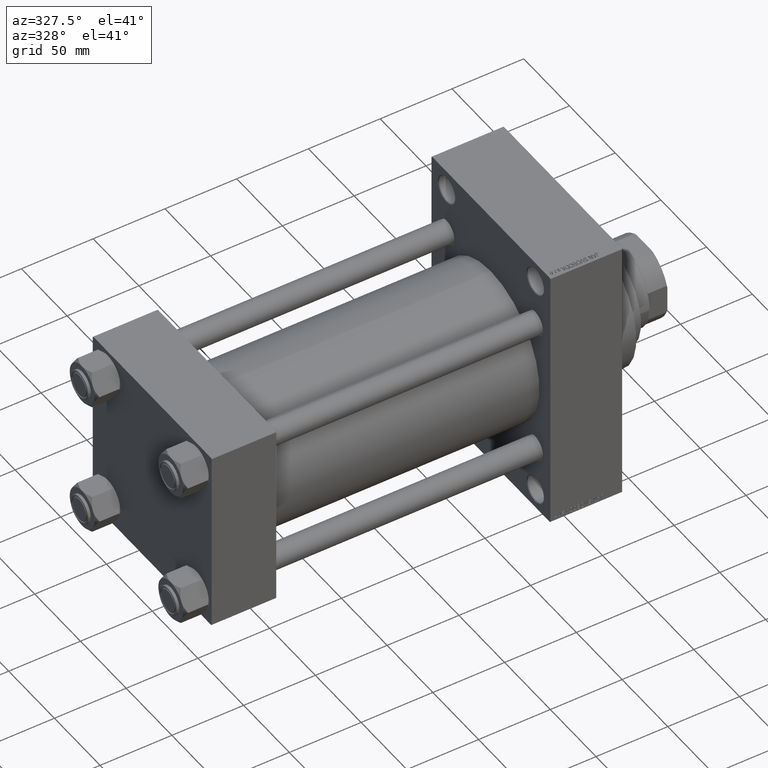
[diagram: clean part render]
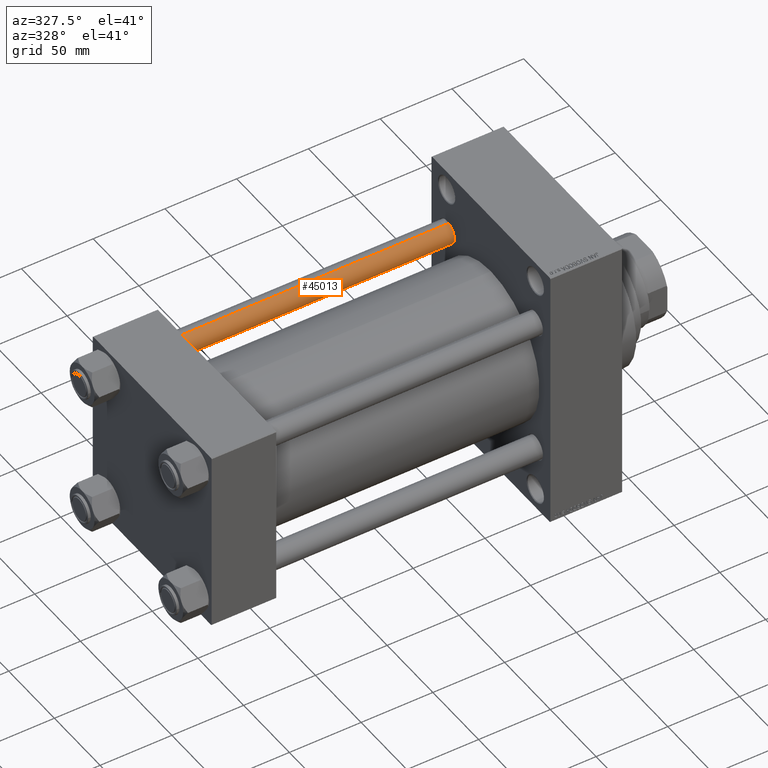
[diagram: same view with one face highlighted and labeled with its STEP entity id]
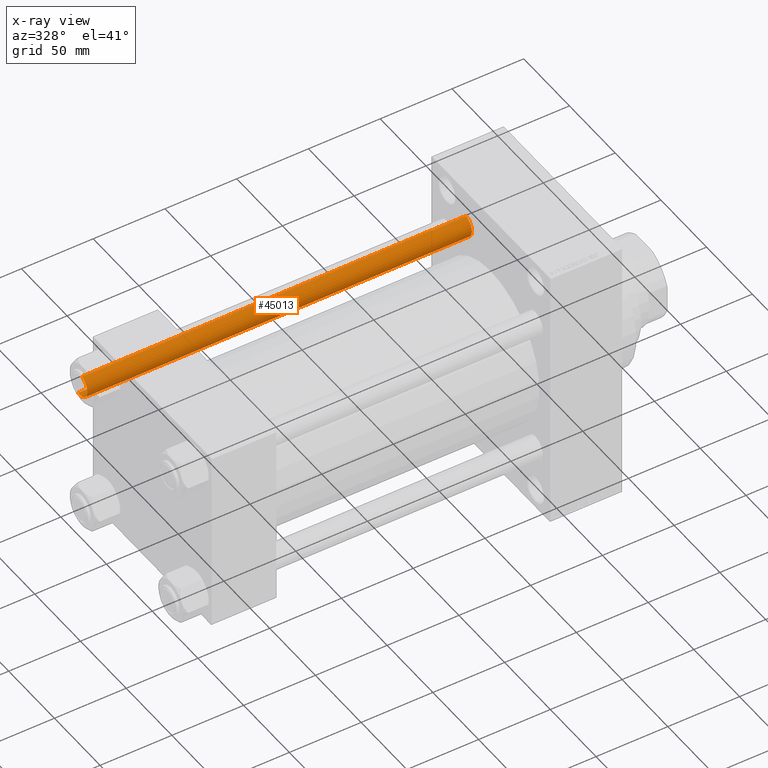
[diagram: x-ray of the same camera — body ghosted, the highlighted face saturated]
A machine part, auxiliary view. The second image highlights one B-rep face of the part: STEP entity #45013.
The next image is the same camera in x-ray: the body ghosted, the highlighted face saturated — about 0% of this face is hidden behind the body in this view.
In plain terms, the highlighted cylindrical surface (edge-blend (fillet) strip) has radius 8 mm, axis along (-1, -0, 0).
Its self-contained STEP definition (entity closure, byte-faithful):
#1609 = ORIENTED_EDGE ( 'NONE', *, *, #9473, .T. ) ;
#2200 = EDGE_LOOP ( 'NONE', ( #39558, #27567, #1609, #18048 ) ) ;
#2699 = VECTOR ( 'NONE', #28751, 1000.000000000000000 ) ;
#6817 = FACE_OUTER_BOUND ( 'NONE', #2200, .T. ) ;
#9109 = CARTESIAN_POINT ( 'NONE',  ( 8.000000000000000000, 9.797174393178825657E-16, 0.4999999999999449329 ) ) ;
#9473 = EDGE_CURVE ( 'NONE', #30301, #21253, #36296, .T. ) ;
#9932 = LINE ( 'NONE', #35744, #2699 ) ;
#10227 = CARTESIAN_POINT ( 'NONE',  ( 0.000000000000000000, 0.000000000000000000, 0.4999999999999449329 ) ) ;
#10955 = DIRECTION ( 'NONE',  ( -0.000000000000000000, -0.000000000000000000, 1.000000000000000000 ) ) ;
#12841 = AXIS2_PLACEMENT_3D ( 'NONE', #13648, #35611, #17037 ) ;
#13648 = CARTESIAN_POINT ( 'NONE',  ( 0.000000000000000000, 0.000000000000000000, 268.5000000000000568 ) ) ;
#14090 = DIRECTION ( 'NONE',  ( -0.000000000000000000, -0.000000000000000000, -1.000000000000000000 ) ) ;
#14296 = AXIS2_PLACEMENT_3D ( 'NONE', #10227, #10955, #18195 ) ;
#15204 = AXIS2_PLACEMENT_3D ( 'NONE', #46635, #43747, #25167 ) ;
#15924 = CIRCLE ( 'NONE', #12841, 8.000000000000000000 ) ;
#17037 = DIRECTION ( 'NONE',  ( 1.000000000000000000, 0.000000000000000000, 0.000000000000000000 ) ) ;
#18048 = ORIENTED_EDGE ( 'NONE', *, *, #36965, .T. ) ;
#18195 = DIRECTION ( 'NONE',  ( 1.000000000000000000, 0.000000000000000000, 0.000000000000000000 ) ) ;
#21253 = VERTEX_POINT ( 'NONE', #46094 ) ;
#22431 = EDGE_CURVE ( 'NONE', #25748, #30301, #15924, .T. ) ;
#25167 = DIRECTION ( 'NONE',  ( -1.000000000000000000, 0.000000000000000000, 0.000000000000000000 ) ) ;
#25748 = VERTEX_POINT ( 'NONE', #29809 ) ;
#26418 = VECTOR ( 'NONE', #14090, 1000.000000000000000 ) ;
#27567 = ORIENTED_EDGE ( 'NONE', *, *, #22431, .T. ) ;
#27923 = CARTESIAN_POINT ( 'NONE',  ( -8.000000000000000000, 0.000000000000000000, 268.5000000000000568 ) ) ;
#28751 = DIRECTION ( 'NONE',  ( -0.000000000000000000, -0.000000000000000000, -1.000000000000000000 ) ) ;
#29809 = CARTESIAN_POINT ( 'NONE',  ( 8.000000000000000000, 9.797174393178825657E-16, 268.5000000000000568 ) ) ;
#30301 = VERTEX_POINT ( 'NONE', #27923 ) ;
#31997 = VERTEX_POINT ( 'NONE', #9109 ) ;
#32160 = CYLINDRICAL_SURFACE ( 'NONE', #15204, 8.000000000000000000 ) ;
#35570 = CARTESIAN_POINT ( 'NONE',  ( -8.000000000000000000, 0.000000000000000000, 269.0000000000000000 ) ) ;
#35611 = DIRECTION ( 'NONE',  ( 0.000000000000000000, 0.000000000000000000, -1.000000000000000000 ) ) ;
#35744 = CARTESIAN_POINT ( 'NONE',  ( 8.000000000000000000, 9.797174393178825657E-16, 269.0000000000000000 ) ) ;
#36296 = LINE ( 'NONE', #35570, #26418 ) ;
#36965 = EDGE_CURVE ( 'NONE', #21253, #31997, #40479, .T. ) ;
#37314 = EDGE_CURVE ( 'NONE', #25748, #31997, #9932, .T. ) ;
#39558 = ORIENTED_EDGE ( 'NONE', *, *, #37314, .F. ) ;
#40479 = CIRCLE ( 'NONE', #14296, 8.000000000000000000 ) ;
#43747 = DIRECTION ( 'NONE',  ( -0.000000000000000000, -0.000000000000000000, -1.000000000000000000 ) ) ;
#45013 = ADVANCED_FACE ( 'NONE', ( #6817 ), #32160, .T. ) ;
#46094 = CARTESIAN_POINT ( 'NONE',  ( -8.000000000000000000, 0.000000000000000000, 0.4999999999999449329 ) ) ;
#46635 = CARTESIAN_POINT ( 'NONE',  ( 0.000000000000000000, 0.000000000000000000, 269.0000000000000000 ) ) ;